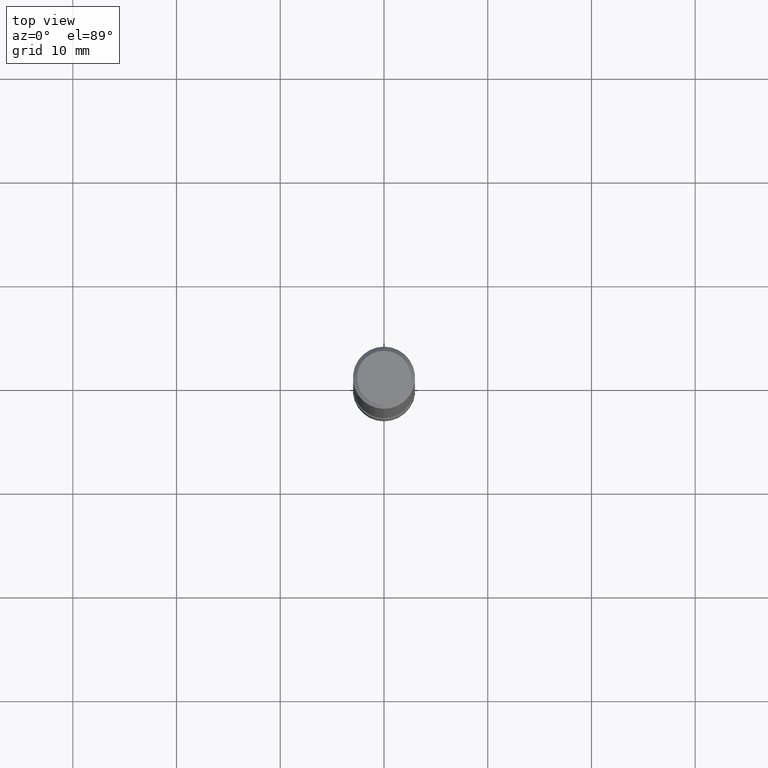
[diagram: clean part render]
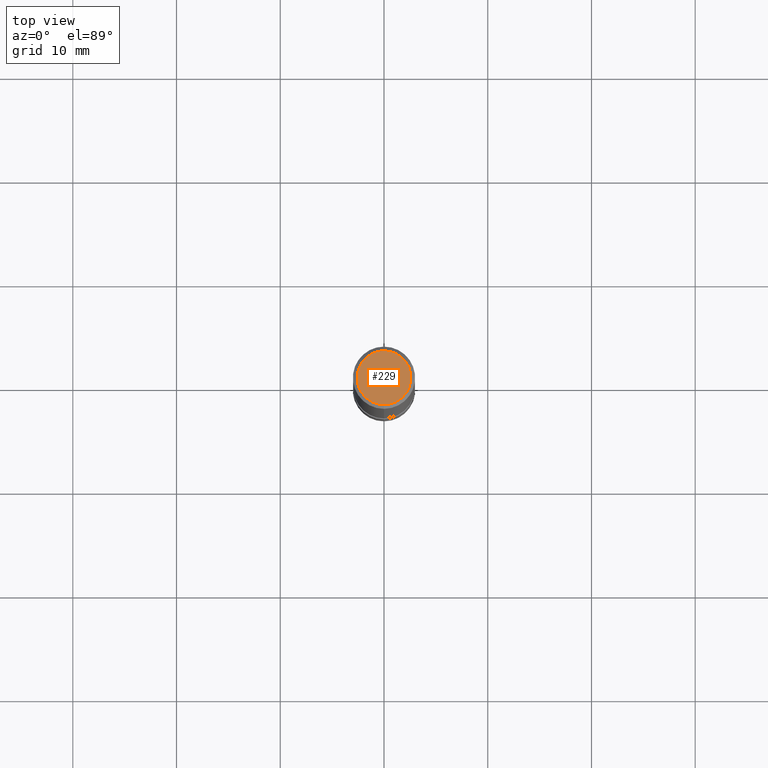
[diagram: same view with one face highlighted and labeled with its STEP entity id]
A machine part, top view. The second image highlights one B-rep face of the part: STEP entity #229.
In plain terms, the highlighted planar face has unit normal (-0, 0, 1).
Its self-contained STEP definition (entity closure, byte-faithful):
#181=EDGE_CURVE('',#193,#237,#382,.T.);
#193=VERTEX_POINT('',#394);
#225=EDGE_CURVE('',#237,#193,#429,.T.);
#229=ADVANCED_FACE('',(#433),#434,.T.);
#237=VERTEX_POINT('',#443);
#382=CIRCLE('',#608,2.6);
#394=CARTESIAN_POINT('',(0.0,2.6,0.0));
#429=CIRCLE('',#671,2.6);
#433=FACE_OUTER_BOUND('',#675,.T.);
#434=PLANE('',#676);
#443=CARTESIAN_POINT('',(3.18397651993818E-016,-2.6,0.0));
#608=AXIS2_PLACEMENT_3D('',#861,#862,#863);
#671=AXIS2_PLACEMENT_3D('',#913,#914,#915);
#675=EDGE_LOOP('',(#917,#918));
#676=AXIS2_PLACEMENT_3D('',#919,#920,#921);
#861=CARTESIAN_POINT('',(0.0,0.0,0.0));
#862=DIRECTION('',(0.0,0.0,-1.0));
#863=DIRECTION('',(0.0,1.0,0.0));
#913=CARTESIAN_POINT('',(0.0,0.0,0.0));
#914=DIRECTION('',(0.0,0.0,-1.0));
#915=DIRECTION('',(0.0,1.0,0.0));
#917=ORIENTED_EDGE('',*,*,#181,.F.);
#918=ORIENTED_EDGE('',*,*,#225,.F.);
#919=CARTESIAN_POINT('',(0.0,1.3,0.0));
#920=DIRECTION('',(-0.0,0.0,1.0));
#921=DIRECTION('',(0.0,-1.0,0.0));